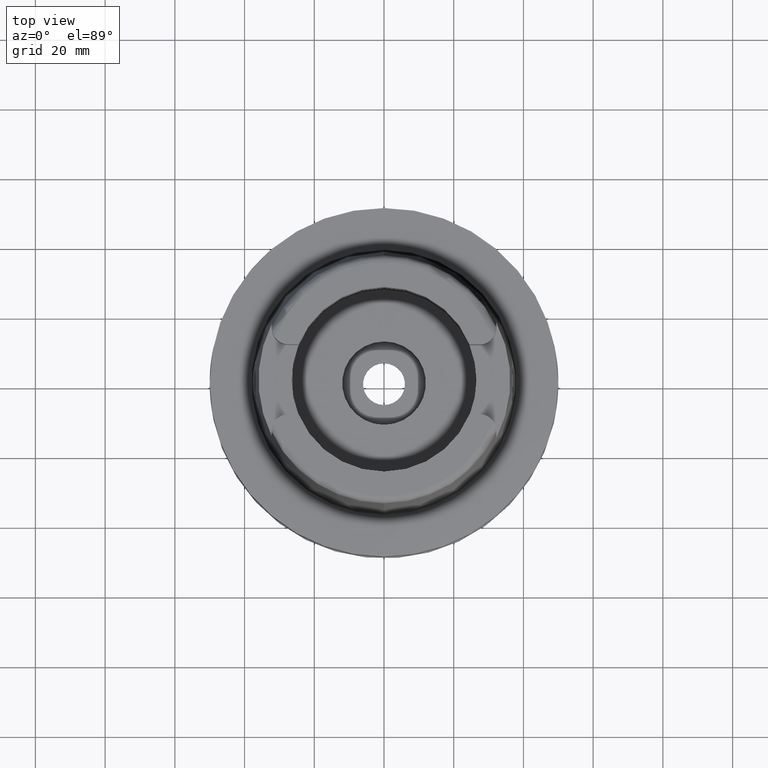
[diagram: clean part render]
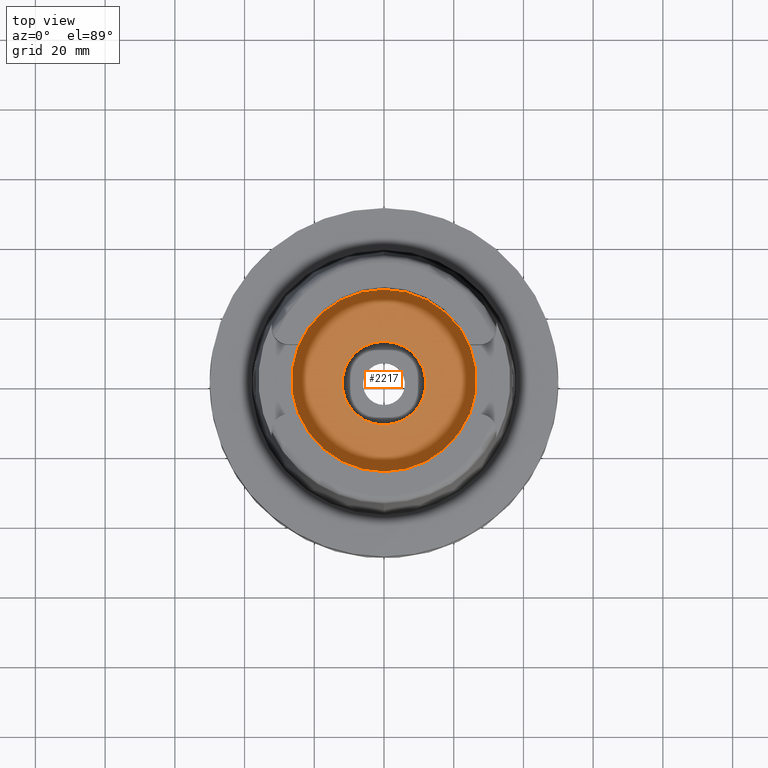
[diagram: same view with one face highlighted and labeled with its STEP entity id]
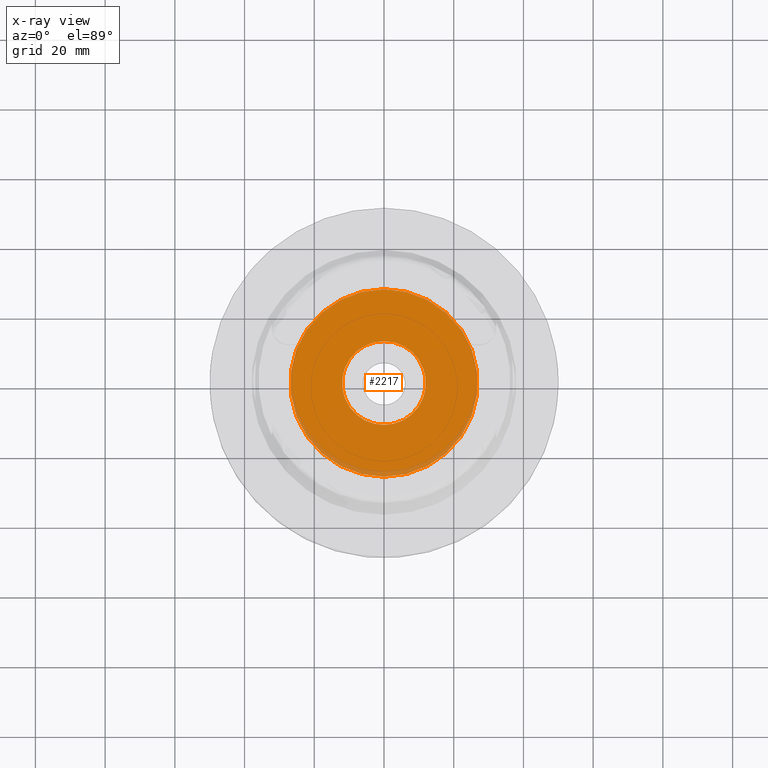
[diagram: x-ray of the same camera — body ghosted, the highlighted face saturated]
A machine part, top view. The second image highlights one B-rep face of the part: STEP entity #2217.
The next image is the same camera in x-ray: the body ghosted, the highlighted face saturated — about 5% of this face is hidden behind the body in this view.
In plain terms, the highlighted planar face has unit normal (0, 0, 1).
Its self-contained STEP definition (entity closure, byte-faithful):
#9 = DIRECTION ( 'NONE',  ( 0.0000000000000000000, 1.000000000000000000, 0.0000000000000000000 ) ) ;
#149 = ORIENTED_EDGE ( 'NONE', *, *, #915, .F. ) ;
#271 = ORIENTED_EDGE ( 'NONE', *, *, #1876, .F. ) ;
#372 = CARTESIAN_POINT ( 'NONE',  ( 0.0000000000000000000, 0.0000000000000000000, -12.44999999999999929 ) ) ;
#396 = DIRECTION ( 'NONE',  ( 0.0000000000000000000, -1.000000000000000000, 0.0000000000000000000 ) ) ;
#448 = CARTESIAN_POINT ( 'NONE',  ( 0.0000000000000000000, 0.0000000000000000000, -12.44999999999999929 ) ) ;
#516 = AXIS2_PLACEMENT_3D ( 'NONE', #2593, #5129, #9 ) ;
#741 = EDGE_LOOP ( 'NONE', ( #271, #2319 ) ) ;
#791 = PLANE ( 'NONE',  #4760 ) ;
#843 = DIRECTION ( 'NONE',  ( 0.0000000000000000000, 0.0000000000000000000, 1.000000000000000000 ) ) ;
#875 = CIRCLE ( 'NONE', #4020, 12.00000000000000000 ) ;
#898 = VERTEX_POINT ( 'NONE', #1531 ) ;
#915 = EDGE_CURVE ( 'NONE', #2062, #2402, #1806, .T. ) ;
#972 = VERTEX_POINT ( 'NONE', #2880 ) ;
#1109 = CARTESIAN_POINT ( 'NONE',  ( 0.0000000000000000000, -12.00000000000000000, -12.44999999999999929 ) ) ;
#1144 = CARTESIAN_POINT ( 'NONE',  ( 0.0000000000000000000, 12.00000000000000000, -12.44999999999999929 ) ) ;
#1199 = DIRECTION ( 'NONE',  ( 1.000000000000000000, 0.0000000000000000000, 0.0000000000000000000 ) ) ;
#1531 = CARTESIAN_POINT ( 'NONE',  ( 0.0000000000000000000, -26.89999999999999858, -12.44999999999999929 ) ) ;
#1806 = CIRCLE ( 'NONE', #2156, 12.00000000000000000 ) ;
#1876 = EDGE_CURVE ( 'NONE', #972, #898, #2844, .T. ) ;
#2062 = VERTEX_POINT ( 'NONE', #1144 ) ;
#2156 = AXIS2_PLACEMENT_3D ( 'NONE', #3411, #2992, #5422 ) ;
#2161 = DIRECTION ( 'NONE',  ( 0.0000000000000000000, 0.0000000000000000000, -1.000000000000000000 ) ) ;
#2207 = EDGE_CURVE ( 'NONE', #2402, #2062, #875, .T. ) ;
#2217 = ADVANCED_FACE ( 'NONE', ( #3768, #4687 ), #791, .T. ) ;
#2319 = ORIENTED_EDGE ( 'NONE', *, *, #3586, .F. ) ;
#2402 = VERTEX_POINT ( 'NONE', #1109 ) ;
#2593 = CARTESIAN_POINT ( 'NONE',  ( 0.0000000000000000000, 0.0000000000000000000, -12.44999999999999929 ) ) ;
#2645 = AXIS2_PLACEMENT_3D ( 'NONE', #448, #2161, #396 ) ;
#2844 = CIRCLE ( 'NONE', #516, 26.89999999999999858 ) ;
#2880 = CARTESIAN_POINT ( 'NONE',  ( 0.0000000000000000000, 26.89999999999999858, -12.44999999999999929 ) ) ;
#2986 = DIRECTION ( 'NONE',  ( 0.0000000000000000000, 0.0000000000000000000, 1.000000000000000000 ) ) ;
#2992 = DIRECTION ( 'NONE',  ( 0.0000000000000000000, 0.0000000000000000000, 1.000000000000000000 ) ) ;
#3306 = ORIENTED_EDGE ( 'NONE', *, *, #2207, .F. ) ;
#3411 = CARTESIAN_POINT ( 'NONE',  ( 0.0000000000000000000, 0.0000000000000000000, -12.44999999999999929 ) ) ;
#3586 = EDGE_CURVE ( 'NONE', #898, #972, #4271, .T. ) ;
#3768 = FACE_OUTER_BOUND ( 'NONE', #741, .T. ) ;
#4020 = AXIS2_PLACEMENT_3D ( 'NONE', #4289, #2986, #5511 ) ;
#4155 = EDGE_LOOP ( 'NONE', ( #149, #3306 ) ) ;
#4271 = CIRCLE ( 'NONE', #2645, 26.89999999999999858 ) ;
#4289 = CARTESIAN_POINT ( 'NONE',  ( 0.0000000000000000000, 0.0000000000000000000, -12.44999999999999929 ) ) ;
#4687 = FACE_BOUND ( 'NONE', #4155, .T. ) ;
#4760 = AXIS2_PLACEMENT_3D ( 'NONE', #372, #843, #1199 ) ;
#5129 = DIRECTION ( 'NONE',  ( 0.0000000000000000000, 0.0000000000000000000, -1.000000000000000000 ) ) ;
#5422 = DIRECTION ( 'NONE',  ( 0.0000000000000000000, 1.000000000000000000, 0.0000000000000000000 ) ) ;
#5511 = DIRECTION ( 'NONE',  ( 0.0000000000000000000, -1.000000000000000000, 0.0000000000000000000 ) ) ;